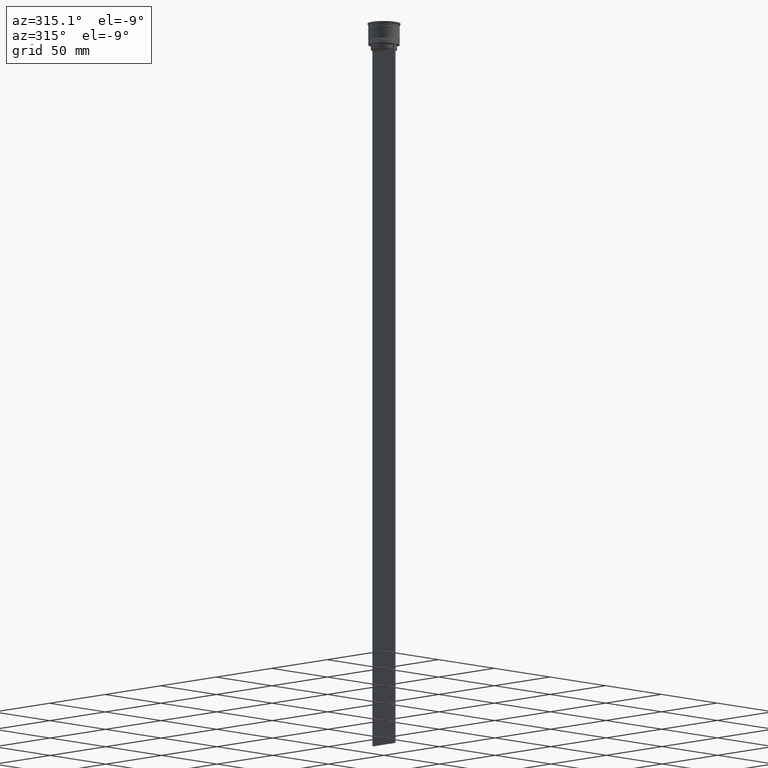
[diagram: clean part render]
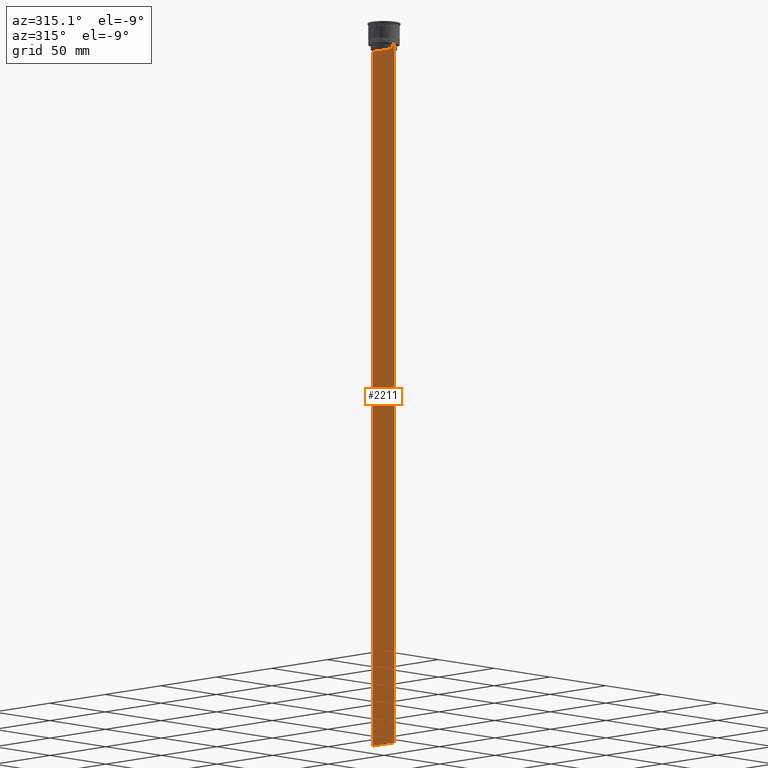
[diagram: same view with one face highlighted and labeled with its STEP entity id]
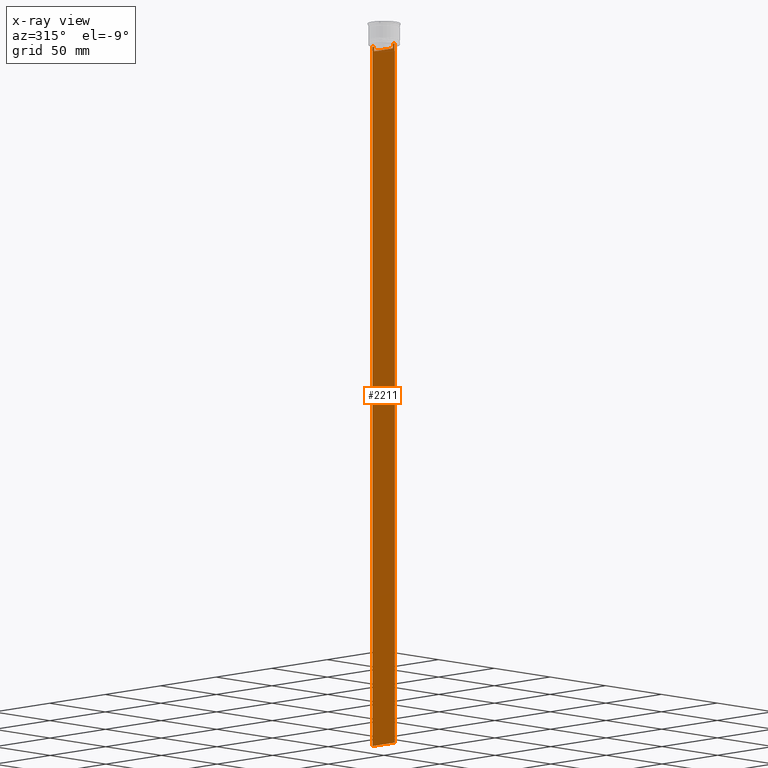
[diagram: x-ray of the same camera — body ghosted, the highlighted face saturated]
A machine part, auxiliary view. The second image highlights one B-rep face of the part: STEP entity #2211.
The next image is the same camera in x-ray: the body ghosted, the highlighted face saturated — about 0% of this face is hidden behind the body in this view.
In plain terms, the highlighted planar face has unit normal (-1, 0, 0).
Its self-contained STEP definition (entity closure, byte-faithful):
#10 = CARTESIAN_POINT ( 'NONE',  ( -0.5000000000000000000, -8.385105843100616241, 0.000000000000000000 ) ) ;
#19 = CARTESIAN_POINT ( 'NONE',  ( -0.5000000000000000000, -10.00000000000000178, -14.00000000000000178 ) ) ;
#25 = VERTEX_POINT ( 'NONE', #383 ) ;
#53 = CARTESIAN_POINT ( 'NONE',  ( -0.5000000000000000000, 8.385105843100616241, -17.00000000000000000 ) ) ;
#54 = CARTESIAN_POINT ( 'NONE',  ( -0.5000000000000000000, -8.385105843100616241, -14.50000000000000000 ) ) ;
#58 = ORIENTED_EDGE ( 'NONE', *, *, #1471, .F. ) ;
#96 = VECTOR ( 'NONE', #1262, 1000.000000000000000 ) ;
#138 = VECTOR ( 'NONE', #2177, 1000.000000000000000 ) ;
#156 = VERTEX_POINT ( 'NONE', #1272 ) ;
#183 = DIRECTION ( 'NONE',  ( 0.000000000000000000, -1.000000000000000000, 0.000000000000000000 ) ) ;
#200 = DIRECTION ( 'NONE',  ( 0.000000000000000000, -1.000000000000000000, 0.000000000000000000 ) ) ;
#208 = LINE ( 'NONE', #10, #1763 ) ;
#226 = CARTESIAN_POINT ( 'NONE',  ( -0.5000000000000000000, 8.400000000000003908, -17.00000000000000000 ) ) ;
#230 = ORIENTED_EDGE ( 'NONE', *, *, #1008, .F. ) ;
#261 = EDGE_CURVE ( 'NONE', #156, #1013, #1522, .T. ) ;
#274 = EDGE_CURVE ( 'NONE', #1992, #1642, #2421, .T. ) ;
#279 = CARTESIAN_POINT ( 'NONE',  ( -0.5000000000000000000, 9.999999999999998224, -464.0000000000000000 ) ) ;
#297 = B_SPLINE_CURVE_WITH_KNOTS ( 'NONE', 3,
 ( #2418, #1367, #1177, #1965 ),
 .UNSPECIFIED., .F., .F.,
 ( 4, 4 ),
 ( 0.01511546479386908018, 0.01582316445439079997 ),
 .UNSPECIFIED. ) ;
#349 = CARTESIAN_POINT ( 'NONE',  ( -0.5000000000000000000, 9.887365675446622149, -14.00000000000000178 ) ) ;
#383 = CARTESIAN_POINT ( 'NONE',  ( -0.5000000000000000000, 8.885943956609230199, -14.00000000000000178 ) ) ;
#499 = EDGE_CURVE ( 'NONE', #1699, #1992, #1662, .T. ) ;
#508 = VECTOR ( 'NONE', #2448, 1000.000000000000000 ) ;
#623 = LINE ( 'NONE', #226, #508 ) ;
#631 = DIRECTION ( 'NONE',  ( 0.000000000000000000, 0.000000000000000000, -1.000000000000000000 ) ) ;
#691 = VECTOR ( 'NONE', #200, 1000.000000000000000 ) ;
#757 = DIRECTION ( 'NONE',  ( 0.000000000000000000, -1.000000000000000000, 0.000000000000000000 ) ) ;
#819 = EDGE_CURVE ( 'NONE', #1363, #2592, #623, .T. ) ;
#839 = ORIENTED_EDGE ( 'NONE', *, *, #2348, .F. ) ;
#886 = CARTESIAN_POINT ( 'NONE',  ( -0.5000000000000000000, -10.00000000000000178, -464.0000000000000000 ) ) ;
#905 = VECTOR ( 'NONE', #631, 1000.000000000000000 ) ;
#988 = LINE ( 'NONE', #1040, #96 ) ;
#1000 = CARTESIAN_POINT ( 'NONE',  ( -0.5000000000000000000, -10.00000000000000178, -14.00000000000000178 ) ) ;
#1008 = EDGE_CURVE ( 'NONE', #1107, #1699, #1385, .T. ) ;
#1013 = VERTEX_POINT ( 'NONE', #279 ) ;
#1022 = ORIENTED_EDGE ( 'NONE', *, *, #1455, .F. ) ;
#1040 = CARTESIAN_POINT ( 'NONE',  ( -0.5000000000000000000, -10.00000000000000178, 6.024984394500783047 ) ) ;
#1107 = VERTEX_POINT ( 'NONE', #1778 ) ;
#1114 = AXIS2_PLACEMENT_3D ( 'NONE', #2479, #1935, #1920 ) ;
#1120 = DIRECTION ( 'NONE',  ( 0.000000000000000000, -1.000000000000000000, 0.000000000000000000 ) ) ;
#1128 = VERTEX_POINT ( 'NONE', #2569 ) ;
#1177 = CARTESIAN_POINT ( 'NONE',  ( -0.5000000000000000000, 8.552060201981381837, -14.33334167021640226 ) ) ;
#1180 = ORIENTED_EDGE ( 'NONE', *, *, #499, .F. ) ;
#1189 = EDGE_CURVE ( 'NONE', #156, #2367, #2485, .T. ) ;
#1193 = EDGE_CURVE ( 'NONE', #1128, #1363, #1822, .T. ) ;
#1220 = CARTESIAN_POINT ( 'NONE',  ( -0.5000000000000000000, 8.385105843100616241, 0.000000000000000000 ) ) ;
#1223 = ORIENTED_EDGE ( 'NONE', *, *, #261, .T. ) ;
#1228 = EDGE_CURVE ( 'NONE', #1642, #1379, #988, .T. ) ;
#1243 = CARTESIAN_POINT ( 'NONE',  ( -0.5000000000000000000, -8.885943956609230199, -14.00000000000000178 ) ) ;
#1262 = DIRECTION ( 'NONE',  ( 0.000000000000000000, 0.000000000000000000, -1.000000000000000000 ) ) ;
#1272 = CARTESIAN_POINT ( 'NONE',  ( -0.5000000000000000000, 9.999999999999994671, -14.00000000000000178 ) ) ;
#1316 = PLANE ( 'NONE',  #1114 ) ;
#1363 = VERTEX_POINT ( 'NONE', #53 ) ;
#1366 = CARTESIAN_POINT ( 'NONE',  ( -0.5000000000000000000, -8.719005764482790966, -14.16667454151159689 ) ) ;
#1367 = CARTESIAN_POINT ( 'NONE',  ( -0.5000000000000000000, 8.719005771582351016, -14.16667453442324742 ) ) ;
#1379 = VERTEX_POINT ( 'NONE', #886 ) ;
#1385 = B_SPLINE_CURVE_WITH_KNOTS ( 'NONE', 3,
 ( #54, #1793, #1366, #1978 ),
 .UNSPECIFIED., .F., .F.,
 ( 4, 4 ),
 ( 0.03898465126933132324, 0.03969388910599660342 ),
 .UNSPECIFIED. ) ;
#1403 = CARTESIAN_POINT ( 'NONE',  ( -0.5000000000000000000, -10.00000000000000178, -14.00000000000000178 ) ) ;
#1447 = DIRECTION ( 'NONE',  ( -0.000000000000000000, -0.000000000000000000, 1.000000000000000000 ) ) ;
#1455 = EDGE_CURVE ( 'NONE', #2367, #25, #1886, .T. ) ;
#1471 = EDGE_CURVE ( 'NONE', #1379, #1013, #2134, .T. ) ;
#1488 = FACE_OUTER_BOUND ( 'NONE', #1796, .T. ) ;
#1522 = LINE ( 'NONE', #1578, #2004 ) ;
#1578 = CARTESIAN_POINT ( 'NONE',  ( -0.5000000000000000000, 9.999999999999998224, 6.024984394500783047 ) ) ;
#1642 = VERTEX_POINT ( 'NONE', #2015 ) ;
#1659 = CARTESIAN_POINT ( 'NONE',  ( -0.5000000000000000000, -8.385105843100616241, -17.00000000000000000 ) ) ;
#1662 = LINE ( 'NONE', #19, #691 ) ;
#1682 = VECTOR ( 'NONE', #183, 1000.000000000000000 ) ;
#1699 = VERTEX_POINT ( 'NONE', #1243 ) ;
#1763 = VECTOR ( 'NONE', #1447, 1000.000000000000000 ) ;
#1778 = CARTESIAN_POINT ( 'NONE',  ( -0.5000000000000000000, -8.385105843100616241, -14.50000000000000000 ) ) ;
#1793 = CARTESIAN_POINT ( 'NONE',  ( -0.5000000000000000000, -8.552060194457769882, -14.33334167772667200 ) ) ;
#1796 = EDGE_LOOP ( 'NONE', ( #839, #1022, #2460, #1223, #58, #2484, #2029, #1180, #230, #2340, #2238, #2413 ) ) ;
#1815 = DIRECTION ( 'NONE',  ( 0.000000000000000000, 0.000000000000000000, -1.000000000000000000 ) ) ;
#1822 = LINE ( 'NONE', #1220, #905 ) ;
#1886 = LINE ( 'NONE', #2609, #2459 ) ;
#1920 = DIRECTION ( 'NONE',  ( 0.000000000000000000, 0.000000000000000000, 1.000000000000000000 ) ) ;
#1935 = DIRECTION ( 'NONE',  ( -1.000000000000000000, 0.000000000000000000, 0.000000000000000000 ) ) ;
#1965 = CARTESIAN_POINT ( 'NONE',  ( -0.5000000000000000000, 8.385105843100616241, -14.50000000000000000 ) ) ;
#1978 = CARTESIAN_POINT ( 'NONE',  ( -0.5000000000000000000, -8.885943956609230199, -14.00000000000000178 ) ) ;
#1992 = VERTEX_POINT ( 'NONE', #2564 ) ;
#2004 = VECTOR ( 'NONE', #1815, 1000.000000000000000 ) ;
#2015 = CARTESIAN_POINT ( 'NONE',  ( -0.5000000000000000000, -10.00000000000000178, -14.00000000000000178 ) ) ;
#2029 = ORIENTED_EDGE ( 'NONE', *, *, #274, .F. ) ;
#2134 = LINE ( 'NONE', #2623, #138 ) ;
#2177 = DIRECTION ( 'NONE',  ( 0.000000000000000000, 1.000000000000000000, 0.000000000000000000 ) ) ;
#2211 = ADVANCED_FACE ( 'NONE', ( #1488 ), #1316, .T. ) ;
#2238 = ORIENTED_EDGE ( 'NONE', *, *, #819, .F. ) ;
#2271 = VECTOR ( 'NONE', #757, 1000.000000000000000 ) ;
#2340 = ORIENTED_EDGE ( 'NONE', *, *, #2580, .F. ) ;
#2348 = EDGE_CURVE ( 'NONE', #25, #1128, #297, .T. ) ;
#2367 = VERTEX_POINT ( 'NONE', #349 ) ;
#2413 = ORIENTED_EDGE ( 'NONE', *, *, #1193, .F. ) ;
#2418 = CARTESIAN_POINT ( 'NONE',  ( -0.5000000000000000000, 8.885943956609230199, -14.00000000000000178 ) ) ;
#2421 = LINE ( 'NONE', #1403, #2271 ) ;
#2448 = DIRECTION ( 'NONE',  ( 0.000000000000000000, -1.000000000000000000, 0.000000000000000000 ) ) ;
#2459 = VECTOR ( 'NONE', #1120, 1000.000000000000000 ) ;
#2460 = ORIENTED_EDGE ( 'NONE', *, *, #1189, .F. ) ;
#2479 = CARTESIAN_POINT ( 'NONE',  ( -0.5000000000000000000, -10.00000000000000178, 6.024984394500783047 ) ) ;
#2484 = ORIENTED_EDGE ( 'NONE', *, *, #1228, .F. ) ;
#2485 = LINE ( 'NONE', #1000, #1682 ) ;
#2564 = CARTESIAN_POINT ( 'NONE',  ( -0.5000000000000000000, -9.887365675446622149, -14.00000000000000178 ) ) ;
#2569 = CARTESIAN_POINT ( 'NONE',  ( -0.5000000000000000000, 8.385105843100616241, -14.50000000000000000 ) ) ;
#2580 = EDGE_CURVE ( 'NONE', #2592, #1107, #208, .T. ) ;
#2592 = VERTEX_POINT ( 'NONE', #1659 ) ;
#2609 = CARTESIAN_POINT ( 'NONE',  ( -0.5000000000000000000, -10.00000000000000178, -14.00000000000000178 ) ) ;
#2623 = CARTESIAN_POINT ( 'NONE',  ( -0.5000000000000000000, -10.00000000000000178, -464.0000000000000000 ) ) ;